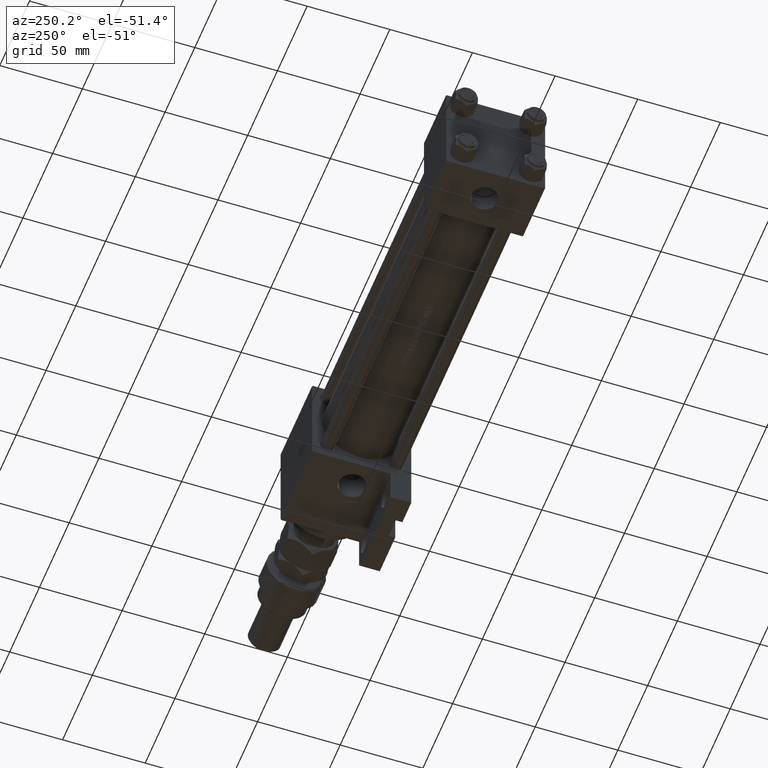
[diagram: clean part render]
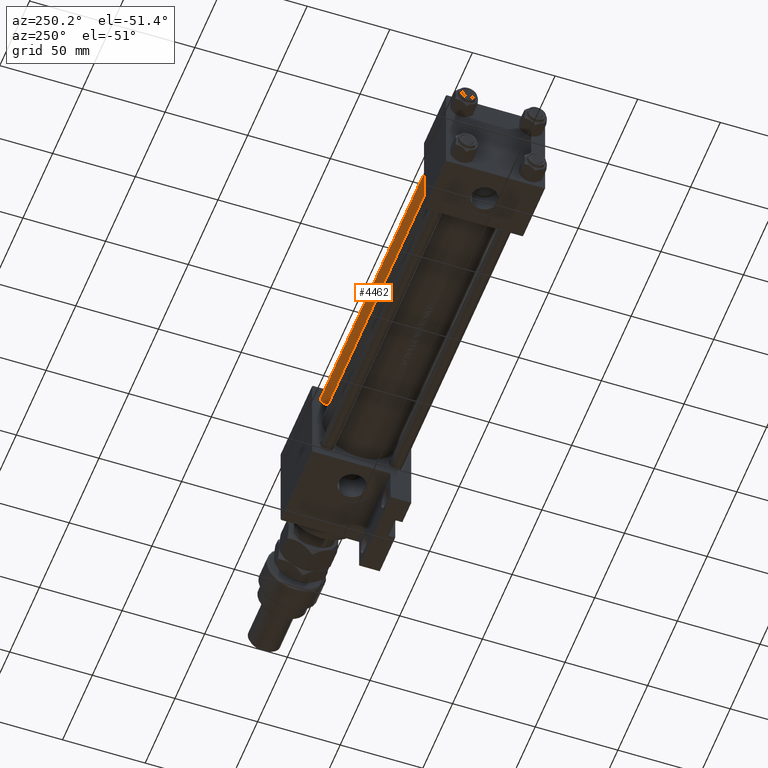
[diagram: same view with one face highlighted and labeled with its STEP entity id]
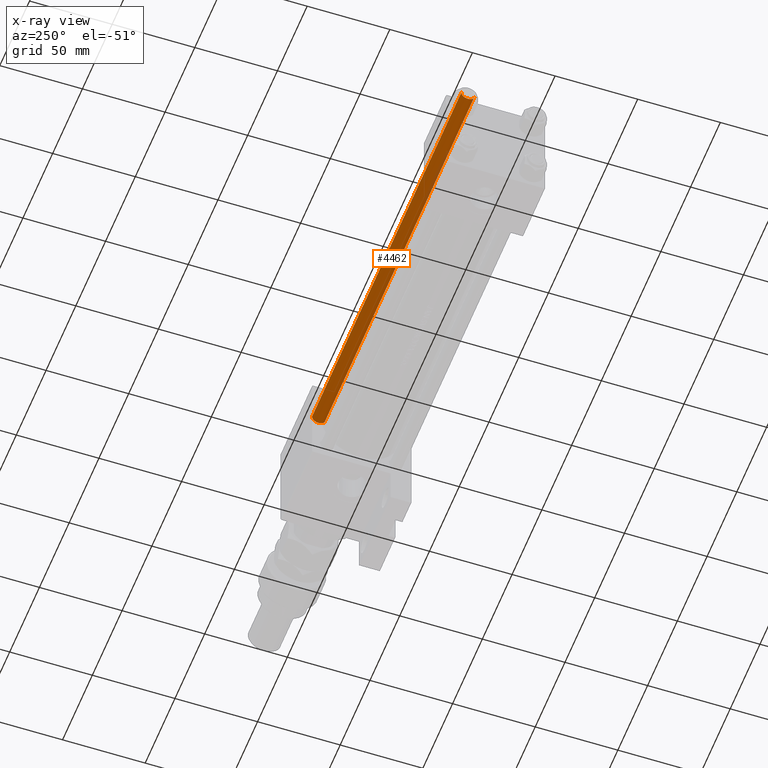
[diagram: x-ray of the same camera — body ghosted, the highlighted face saturated]
A machine part, auxiliary view. The second image highlights one B-rep face of the part: STEP entity #4462.
The next image is the same camera in x-ray: the body ghosted, the highlighted face saturated — about 4% of this face is hidden behind the body in this view.
In plain terms, the highlighted cylindrical surface (edge-blend (fillet) strip) has radius 4 mm, axis along (1, -0, 0).
Its self-contained STEP definition (entity closure, byte-faithful):
#1562 = AXIS2_PLACEMENT_3D ( 'NONE', #31725, #51082, #42665 ) ;
#1890 = VECTOR ( 'NONE', #8563, 1000.000000000000000 ) ;
#2446 = CYLINDRICAL_SURFACE ( 'NONE', #1562, 4.000000000000000000 ) ;
#2473 = VERTEX_POINT ( 'NONE', #7571 ) ;
#4462 = ADVANCED_FACE ( 'NONE', ( #47996 ), #2446, .T. ) ;
#5242 = CARTESIAN_POINT ( 'NONE',  ( 4.000000000000000000, 4.898587196589412829E-16, 251.5000000000000568 ) ) ;
#5295 = ORIENTED_EDGE ( 'NONE', *, *, #8388, .F. ) ;
#7571 = CARTESIAN_POINT ( 'NONE',  ( -4.000000000000000000, 0.000000000000000000, 0.5000000000000004441 ) ) ;
#7733 = VECTOR ( 'NONE', #40095, 1000.000000000000000 ) ;
#8388 = EDGE_CURVE ( 'NONE', #22175, #2473, #24820, .T. ) ;
#8563 = DIRECTION ( 'NONE',  ( -0.000000000000000000, -0.000000000000000000, -1.000000000000000000 ) ) ;
#10100 = EDGE_CURVE ( 'NONE', #41567, #31240, #42468, .T. ) ;
#12317 = DIRECTION ( 'NONE',  ( -0.000000000000000000, -0.000000000000000000, 1.000000000000000000 ) ) ;
#16047 = DIRECTION ( 'NONE',  ( 0.000000000000000000, 0.000000000000000000, -1.000000000000000000 ) ) ;
#19413 = ORIENTED_EDGE ( 'NONE', *, *, #26884, .T. ) ;
#19806 = AXIS2_PLACEMENT_3D ( 'NONE', #45164, #12317, #41616 ) ;
#21508 = EDGE_CURVE ( 'NONE', #31240, #2473, #49266, .T. ) ;
#22175 = VERTEX_POINT ( 'NONE', #33499 ) ;
#23829 = CARTESIAN_POINT ( 'NONE',  ( -4.000000000000000000, 0.000000000000000000, 252.0000000000000000 ) ) ;
#23907 = ORIENTED_EDGE ( 'NONE', *, *, #21508, .T. ) ;
#24473 = DIRECTION ( 'NONE',  ( 1.000000000000000000, 0.000000000000000000, 0.000000000000000000 ) ) ;
#24820 = LINE ( 'NONE', #23829, #7733 ) ;
#26884 = EDGE_CURVE ( 'NONE', #22175, #41567, #40652, .T. ) ;
#28572 = EDGE_LOOP ( 'NONE', ( #19413, #47692, #23907, #5295 ) ) ;
#31240 = VERTEX_POINT ( 'NONE', #47223 ) ;
#31725 = CARTESIAN_POINT ( 'NONE',  ( 0.000000000000000000, 0.000000000000000000, 252.0000000000000000 ) ) ;
#32849 = AXIS2_PLACEMENT_3D ( 'NONE', #44809, #16047, #24473 ) ;
#33499 = CARTESIAN_POINT ( 'NONE',  ( -4.000000000000000000, 0.000000000000000000, 251.5000000000000568 ) ) ;
#37350 = CARTESIAN_POINT ( 'NONE',  ( 4.000000000000000000, 4.898587196589412829E-16, 252.0000000000000000 ) ) ;
#40095 = DIRECTION ( 'NONE',  ( -0.000000000000000000, -0.000000000000000000, -1.000000000000000000 ) ) ;
#40652 = CIRCLE ( 'NONE', #32849, 4.000000000000000000 ) ;
#41567 = VERTEX_POINT ( 'NONE', #5242 ) ;
#41616 = DIRECTION ( 'NONE',  ( 1.000000000000000000, 0.000000000000000000, 0.000000000000000000 ) ) ;
#42468 = LINE ( 'NONE', #37350, #1890 ) ;
#42665 = DIRECTION ( 'NONE',  ( -1.000000000000000000, 0.000000000000000000, 0.000000000000000000 ) ) ;
#44809 = CARTESIAN_POINT ( 'NONE',  ( 0.000000000000000000, 0.000000000000000000, 251.5000000000000568 ) ) ;
#45164 = CARTESIAN_POINT ( 'NONE',  ( 0.000000000000000000, 0.000000000000000000, 0.5000000000000004441 ) ) ;
#47223 = CARTESIAN_POINT ( 'NONE',  ( 4.000000000000000000, 4.898587196589412829E-16, 0.5000000000000004441 ) ) ;
#47692 = ORIENTED_EDGE ( 'NONE', *, *, #10100, .T. ) ;
#47996 = FACE_OUTER_BOUND ( 'NONE', #28572, .T. ) ;
#49266 = CIRCLE ( 'NONE', #19806, 4.000000000000000000 ) ;
#51082 = DIRECTION ( 'NONE',  ( -0.000000000000000000, -0.000000000000000000, -1.000000000000000000 ) ) ;